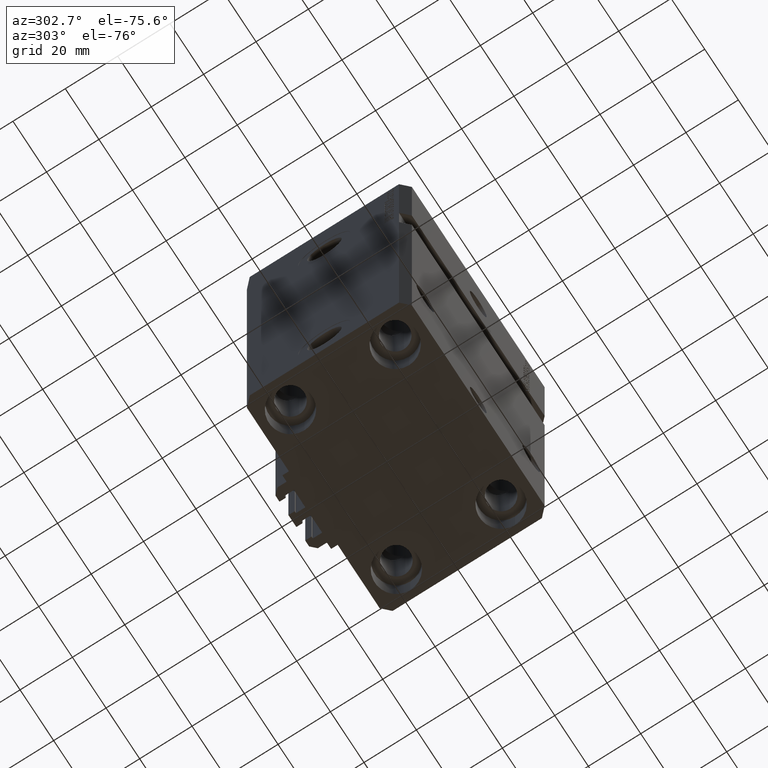
[diagram: clean part render]
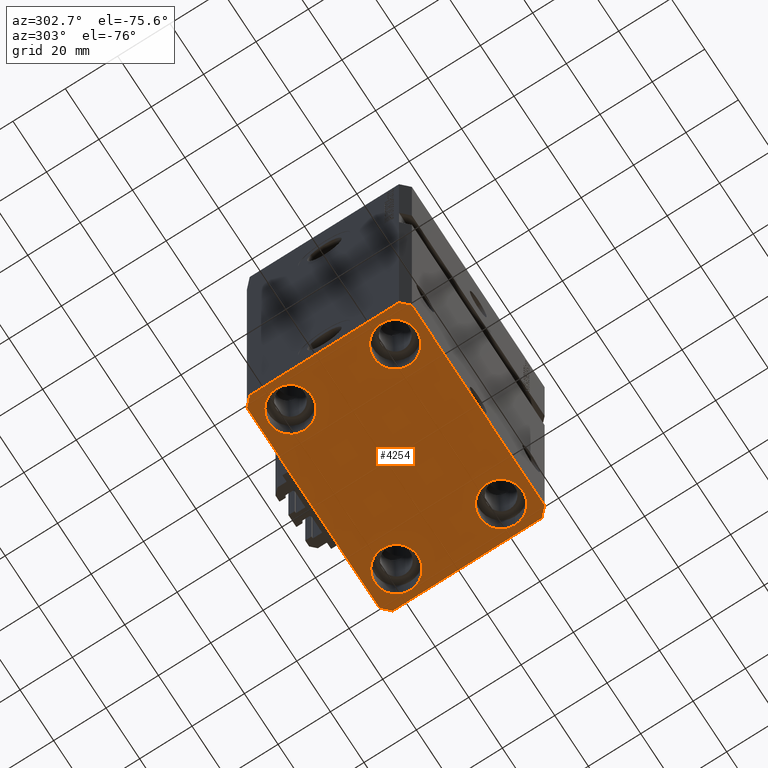
[diagram: same view with one face highlighted and labeled with its STEP entity id]
A machine part, auxiliary view. The second image highlights one B-rep face of the part: STEP entity #4254.
In plain terms, the highlighted planar face has unit normal (0, 0, 1).
Its self-contained STEP definition (entity closure, byte-faithful):
#151 = EDGE_CURVE ( 'NONE', #11176, #33285, #13259, .T. ) ;
#329 = AXIS2_PLACEMENT_3D ( 'NONE', #25791, #33924, #29858 ) ;
#435 = AXIS2_PLACEMENT_3D ( 'NONE', #30444, #3243, #18731 ) ;
#575 = AXIS2_PLACEMENT_3D ( 'NONE', #2578, #41439, #41931 ) ;
#643 = EDGE_CURVE ( 'NONE', #13744, #33914, #39279, .T. ) ;
#886 = EDGE_CURVE ( 'NONE', #33285, #11176, #1143, .T. ) ;
#897 = EDGE_CURVE ( 'NONE', #33914, #39178, #45089, .T. ) ;
#911 = DIRECTION ( 'NONE',  ( 1.000000000000000000, 0.000000000000000000, 0.000000000000000000 ) ) ;
#1082 = DIRECTION ( 'NONE',  ( 1.000000000000000000, 0.000000000000000000, 0.000000000000000000 ) ) ;
#1143 = CIRCLE ( 'NONE', #329, 8.250000000000000000 ) ;
#1191 = VERTEX_POINT ( 'NONE', #46970 ) ;
#1227 = EDGE_CURVE ( 'NONE', #12551, #5836, #42419, .T. ) ;
#1828 = CARTESIAN_POINT ( 'NONE',  ( 31.50000000000000000, 20.00000000000001066, -153.0000000000000000 ) ) ;
#2578 = CARTESIAN_POINT ( 'NONE',  ( -31.50000000000000000, 20.00000000000000000, -153.0000000000000000 ) ) ;
#2863 = EDGE_CURVE ( 'NONE', #5836, #48547, #4244, .T. ) ;
#2961 = VERTEX_POINT ( 'NONE', #47665 ) ;
#3000 = EDGE_LOOP ( 'NONE', ( #31189, #48184 ) ) ;
#3243 = DIRECTION ( 'NONE',  ( 0.000000000000000000, 0.000000000000000000, 1.000000000000000000 ) ) ;
#3369 = CARTESIAN_POINT ( 'NONE',  ( 39.50000000000000711, -31.50000000000000000, -153.0000000000000000 ) ) ;
#3560 = CARTESIAN_POINT ( 'NONE',  ( 42.50000000000051870, 28.49999999999995381, -153.0000000000000000 ) ) ;
#3810 = DIRECTION ( 'NONE',  ( -1.000000000000000000, 0.000000000000000000, 0.000000000000000000 ) ) ;
#4244 = LINE ( 'NONE', #31432, #6926 ) ;
#4254 = ADVANCED_FACE ( 'NONE', ( #17992, #7070, #26624, #49469, #22057 ), #22794, .F. ) ;
#4256 = CARTESIAN_POINT ( 'NONE',  ( -31.50000000000000000, 20.00000000000000000, -153.0000000000000000 ) ) ;
#5836 = VERTEX_POINT ( 'NONE', #37465 ) ;
#6865 = EDGE_CURVE ( 'NONE', #46049, #17783, #26758, .T. ) ;
#6926 = VECTOR ( 'NONE', #12118, 1000.000000000000000 ) ;
#7070 = FACE_BOUND ( 'NONE', #19383, .T. ) ;
#7634 = CARTESIAN_POINT ( 'NONE',  ( 39.50000000000056843, 31.50000000000000000, -153.0000000000000000 ) ) ;
#7667 = EDGE_CURVE ( 'NONE', #1191, #27898, #25160, .T. ) ;
#8542 = DIRECTION ( 'NONE',  ( 1.000000000000000000, 0.000000000000000000, 0.000000000000000000 ) ) ;
#8696 = EDGE_CURVE ( 'NONE', #2961, #13744, #18083, .T. ) ;
#8976 = DIRECTION ( 'NONE',  ( 1.000000000000000000, 0.000000000000000000, 0.000000000000000000 ) ) ;
#9445 = ORIENTED_EDGE ( 'NONE', *, *, #7667, .T. ) ;
#10298 = CARTESIAN_POINT ( 'NONE',  ( 39.50000000000000711, -31.50000000000000000, -153.0000000000000000 ) ) ;
#10483 = EDGE_CURVE ( 'NONE', #39178, #44954, #46575, .T. ) ;
#11099 = ORIENTED_EDGE ( 'NONE', *, *, #10483, .F. ) ;
#11176 = VERTEX_POINT ( 'NONE', #21035 ) ;
#11326 = LINE ( 'NONE', #39511, #27805 ) ;
#11374 = ORIENTED_EDGE ( 'NONE', *, *, #16531, .T. ) ;
#11794 = CARTESIAN_POINT ( 'NONE',  ( 42.50000000000000711, -28.50000000000000355, -153.0000000000000000 ) ) ;
#12096 = CARTESIAN_POINT ( 'NONE',  ( 39.50000000000056843, 31.50000000000000000, -153.0000000000000000 ) ) ;
#12118 = DIRECTION ( 'NONE',  ( -0.7071067811865471286, -0.7071067811865479058, 0.000000000000000000 ) ) ;
#12455 = AXIS2_PLACEMENT_3D ( 'NONE', #43765, #44702, #1082 ) ;
#12551 = VERTEX_POINT ( 'NONE', #12096 ) ;
#12640 = DIRECTION ( 'NONE',  ( 1.000000000000000000, 0.000000000000000000, 0.000000000000000000 ) ) ;
#12704 = CARTESIAN_POINT ( 'NONE',  ( -39.75000000000000000, 20.00000000000000000, -153.0000000000000000 ) ) ;
#13259 = CIRCLE ( 'NONE', #12455, 8.250000000000000000 ) ;
#13602 = AXIS2_PLACEMENT_3D ( 'NONE', #15451, #35786, #31457 ) ;
#13744 = VERTEX_POINT ( 'NONE', #19836 ) ;
#13763 = VECTOR ( 'NONE', #27291, 1000.000000000000000 ) ;
#15451 = CARTESIAN_POINT ( 'NONE',  ( 31.50000000000000000, 20.00000000000001066, -153.0000000000000000 ) ) ;
#15626 = ORIENTED_EDGE ( 'NONE', *, *, #897, .F. ) ;
#16106 = ORIENTED_EDGE ( 'NONE', *, *, #29924, .T. ) ;
#16158 = DIRECTION ( 'NONE',  ( -0.000000000000000000, -0.000000000000000000, 1.000000000000000000 ) ) ;
#16410 = CARTESIAN_POINT ( 'NONE',  ( 31.50000000000000000, -20.00000000000000000, -153.0000000000000000 ) ) ;
#16531 = EDGE_CURVE ( 'NONE', #28751, #48608, #42359, .T. ) ;
#17013 = EDGE_CURVE ( 'NONE', #44954, #12551, #11326, .T. ) ;
#17054 = CARTESIAN_POINT ( 'NONE',  ( 31.50000000000000000, -20.00000000000000000, -153.0000000000000000 ) ) ;
#17248 = CARTESIAN_POINT ( 'NONE',  ( -23.25000000000000000, 20.00000000000000000, -153.0000000000000000 ) ) ;
#17783 = VERTEX_POINT ( 'NONE', #17248 ) ;
#17992 = FACE_BOUND ( 'NONE', #3000, .T. ) ;
#18083 = LINE ( 'NONE', #41215, #31688 ) ;
#18621 = AXIS2_PLACEMENT_3D ( 'NONE', #4256, #43632, #12640 ) ;
#18636 = EDGE_LOOP ( 'NONE', ( #30130, #34760, #11099, #15626, #32467, #34020, #42970, #46692 ) ) ;
#18731 = DIRECTION ( 'NONE',  ( 1.000000000000000000, 0.000000000000000000, -0.000000000000000000 ) ) ;
#19383 = EDGE_LOOP ( 'NONE', ( #11374, #36893 ) ) ;
#19472 = ORIENTED_EDGE ( 'NONE', *, *, #40354, .T. ) ;
#19836 = CARTESIAN_POINT ( 'NONE',  ( -39.50000000000000711, -31.50000000000000000, -153.0000000000000000 ) ) ;
#20155 = VECTOR ( 'NONE', #46698, 1000.000000000000000 ) ;
#20343 = CARTESIAN_POINT ( 'NONE',  ( 23.25000000000000355, -20.00000000000000000, -153.0000000000000000 ) ) ;
#20469 = AXIS2_PLACEMENT_3D ( 'NONE', #17054, #35625, #21110 ) ;
#20612 = VECTOR ( 'NONE', #33674, 1000.000000000000000 ) ;
#20954 = EDGE_CURVE ( 'NONE', #48608, #28751, #23061, .T. ) ;
#21035 = CARTESIAN_POINT ( 'NONE',  ( -23.25000000000000000, -20.00000000000000000, -153.0000000000000000 ) ) ;
#21110 = DIRECTION ( 'NONE',  ( 1.000000000000000000, 0.000000000000000000, 0.000000000000000000 ) ) ;
#22057 = FACE_OUTER_BOUND ( 'NONE', #18636, .T. ) ;
#22329 = CARTESIAN_POINT ( 'NONE',  ( -42.50000000000000000, 28.50000000000000000, -153.0000000000000000 ) ) ;
#22794 = PLANE ( 'NONE',  #435 ) ;
#23061 = CIRCLE ( 'NONE', #47397, 8.249999999999992895 ) ;
#23344 = CARTESIAN_POINT ( 'NONE',  ( -39.75000000000000000, -20.00000000000000000, -153.0000000000000000 ) ) ;
#23593 = CARTESIAN_POINT ( 'NONE',  ( -42.50000000000000000, 28.50000000000000000, -153.0000000000000000 ) ) ;
#25160 = CIRCLE ( 'NONE', #45429, 8.249999999999992895 ) ;
#25454 = VECTOR ( 'NONE', #8542, 1000.000000000000000 ) ;
#25791 = CARTESIAN_POINT ( 'NONE',  ( -31.50000000000000000, -20.00000000000000000, -153.0000000000000000 ) ) ;
#26624 = FACE_BOUND ( 'NONE', #44021, .T. ) ;
#26758 = CIRCLE ( 'NONE', #18621, 8.250000000000000000 ) ;
#27291 = DIRECTION ( 'NONE',  ( 8.886653596232072440E-15, 1.000000000000000000, 0.000000000000000000 ) ) ;
#27317 = DIRECTION ( 'NONE',  ( -0.7071067811865356934, 0.7071067811865594521, 0.000000000000000000 ) ) ;
#27805 = VECTOR ( 'NONE', #27317, 1000.000000000000114 ) ;
#27898 = VERTEX_POINT ( 'NONE', #42451 ) ;
#28751 = VERTEX_POINT ( 'NONE', #20343 ) ;
#29858 = DIRECTION ( 'NONE',  ( 1.000000000000000000, 0.000000000000000000, 0.000000000000000000 ) ) ;
#29924 = EDGE_CURVE ( 'NONE', #17783, #46049, #37098, .T. ) ;
#30130 = ORIENTED_EDGE ( 'NONE', *, *, #1227, .F. ) ;
#30444 = CARTESIAN_POINT ( 'NONE',  ( 0.000000000000000000, 0.000000000000000000, -153.0000000000000000 ) ) ;
#30963 = CARTESIAN_POINT ( 'NONE',  ( 39.74999999999999289, -20.00000000000000000, -153.0000000000000000 ) ) ;
#31189 = ORIENTED_EDGE ( 'NONE', *, *, #886, .T. ) ;
#31432 = CARTESIAN_POINT ( 'NONE',  ( -39.50000000000000711, 31.50000000000000000, -153.0000000000000000 ) ) ;
#31457 = DIRECTION ( 'NONE',  ( 1.000000000000000000, 0.000000000000000000, 0.000000000000000000 ) ) ;
#31688 = VECTOR ( 'NONE', #49809, 1000.000000000000000 ) ;
#32009 = ORIENTED_EDGE ( 'NONE', *, *, #6865, .T. ) ;
#32467 = ORIENTED_EDGE ( 'NONE', *, *, #643, .F. ) ;
#33285 = VERTEX_POINT ( 'NONE', #23344 ) ;
#33674 = DIRECTION ( 'NONE',  ( 0.7071067811865483499, 0.7071067811865466846, 0.000000000000000000 ) ) ;
#33914 = VERTEX_POINT ( 'NONE', #3369 ) ;
#33924 = DIRECTION ( 'NONE',  ( -0.000000000000000000, -0.000000000000000000, 1.000000000000000000 ) ) ;
#34020 = ORIENTED_EDGE ( 'NONE', *, *, #8696, .F. ) ;
#34760 = ORIENTED_EDGE ( 'NONE', *, *, #17013, .F. ) ;
#35514 = CIRCLE ( 'NONE', #13602, 8.249999999999992895 ) ;
#35625 = DIRECTION ( 'NONE',  ( -0.000000000000000000, -0.000000000000000000, 1.000000000000000000 ) ) ;
#35786 = DIRECTION ( 'NONE',  ( -0.000000000000000000, -0.000000000000000000, 1.000000000000000000 ) ) ;
#36893 = ORIENTED_EDGE ( 'NONE', *, *, #20954, .T. ) ;
#37098 = CIRCLE ( 'NONE', #575, 8.250000000000000000 ) ;
#37465 = CARTESIAN_POINT ( 'NONE',  ( -39.50000000000000711, 31.50000000000000000, -153.0000000000000000 ) ) ;
#39178 = VERTEX_POINT ( 'NONE', #44196 ) ;
#39279 = LINE ( 'NONE', #47380, #25454 ) ;
#39511 = CARTESIAN_POINT ( 'NONE',  ( 42.50000000000051870, 28.49999999999995381, -153.0000000000000000 ) ) ;
#40354 = EDGE_CURVE ( 'NONE', #27898, #1191, #35514, .T. ) ;
#41215 = CARTESIAN_POINT ( 'NONE',  ( -42.50000000000000000, -28.50000000000000000, -153.0000000000000000 ) ) ;
#41439 = DIRECTION ( 'NONE',  ( -0.000000000000000000, -0.000000000000000000, 1.000000000000000000 ) ) ;
#41931 = DIRECTION ( 'NONE',  ( 1.000000000000000000, 0.000000000000000000, 0.000000000000000000 ) ) ;
#42115 = EDGE_CURVE ( 'NONE', #48547, #2961, #43153, .T. ) ;
#42359 = CIRCLE ( 'NONE', #20469, 8.249999999999992895 ) ;
#42419 = LINE ( 'NONE', #7634, #44156 ) ;
#42451 = CARTESIAN_POINT ( 'NONE',  ( 39.74999999999999289, 20.00000000000001066, -153.0000000000000000 ) ) ;
#42970 = ORIENTED_EDGE ( 'NONE', *, *, #42115, .F. ) ;
#43010 = EDGE_LOOP ( 'NONE', ( #32009, #16106 ) ) ;
#43153 = LINE ( 'NONE', #23593, #20155 ) ;
#43632 = DIRECTION ( 'NONE',  ( -0.000000000000000000, -0.000000000000000000, 1.000000000000000000 ) ) ;
#43765 = CARTESIAN_POINT ( 'NONE',  ( -31.50000000000000000, -20.00000000000000000, -153.0000000000000000 ) ) ;
#44021 = EDGE_LOOP ( 'NONE', ( #9445, #19472 ) ) ;
#44156 = VECTOR ( 'NONE', #3810, 1000.000000000000000 ) ;
#44196 = CARTESIAN_POINT ( 'NONE',  ( 42.50000000000000711, -28.50000000000000355, -153.0000000000000000 ) ) ;
#44509 = DIRECTION ( 'NONE',  ( -0.000000000000000000, -0.000000000000000000, 1.000000000000000000 ) ) ;
#44702 = DIRECTION ( 'NONE',  ( -0.000000000000000000, -0.000000000000000000, 1.000000000000000000 ) ) ;
#44954 = VERTEX_POINT ( 'NONE', #3560 ) ;
#45089 = LINE ( 'NONE', #10298, #20612 ) ;
#45429 = AXIS2_PLACEMENT_3D ( 'NONE', #1828, #44509, #8976 ) ;
#46049 = VERTEX_POINT ( 'NONE', #12704 ) ;
#46575 = LINE ( 'NONE', #11794, #13763 ) ;
#46692 = ORIENTED_EDGE ( 'NONE', *, *, #2863, .F. ) ;
#46698 = DIRECTION ( 'NONE',  ( 0.000000000000000000, -1.000000000000000000, 0.000000000000000000 ) ) ;
#46970 = CARTESIAN_POINT ( 'NONE',  ( 23.25000000000000355, 20.00000000000001066, -153.0000000000000000 ) ) ;
#47380 = CARTESIAN_POINT ( 'NONE',  ( -39.50000000000000711, -31.50000000000000000, -153.0000000000000000 ) ) ;
#47397 = AXIS2_PLACEMENT_3D ( 'NONE', #16410, #16158, #911 ) ;
#47665 = CARTESIAN_POINT ( 'NONE',  ( -42.50000000000000000, -28.50000000000000000, -153.0000000000000000 ) ) ;
#48184 = ORIENTED_EDGE ( 'NONE', *, *, #151, .T. ) ;
#48547 = VERTEX_POINT ( 'NONE', #22329 ) ;
#48608 = VERTEX_POINT ( 'NONE', #30963 ) ;
#49469 = FACE_BOUND ( 'NONE', #43010, .T. ) ;
#49809 = DIRECTION ( 'NONE',  ( 0.7071067811865471286, -0.7071067811865479058, 0.000000000000000000 ) ) ;